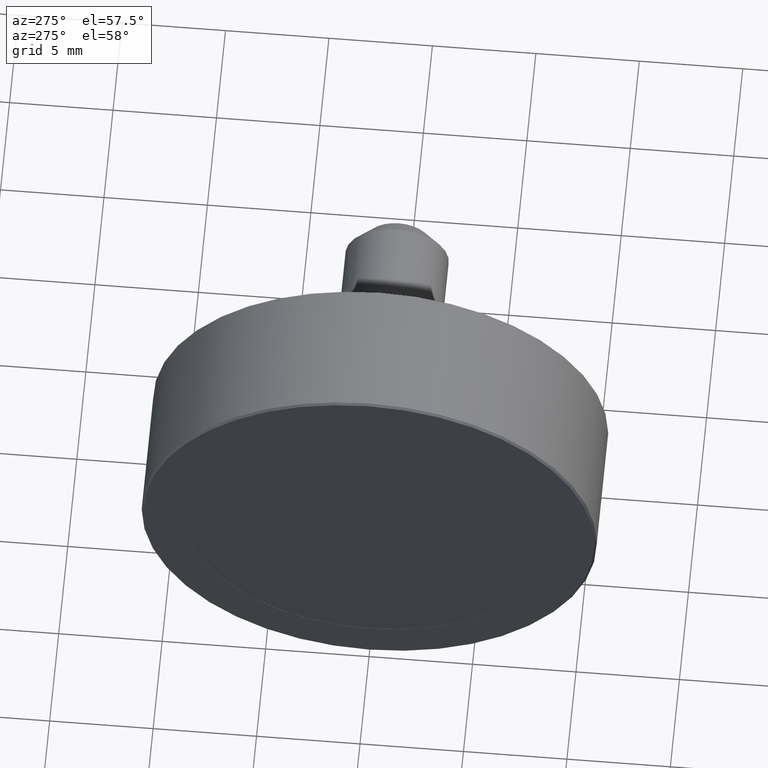
[diagram: clean part render]
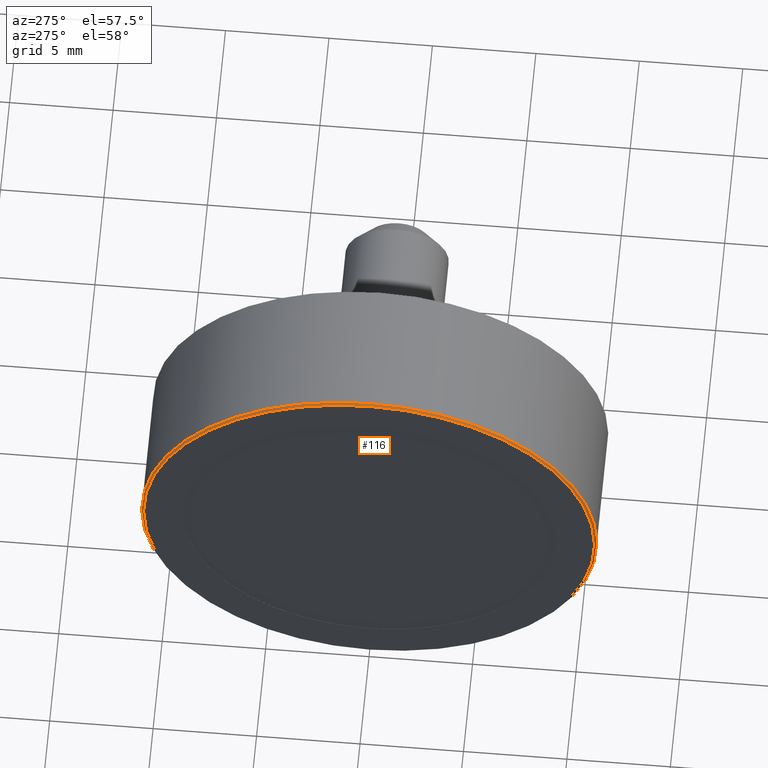
[diagram: same view with one face highlighted and labeled with its STEP entity id]
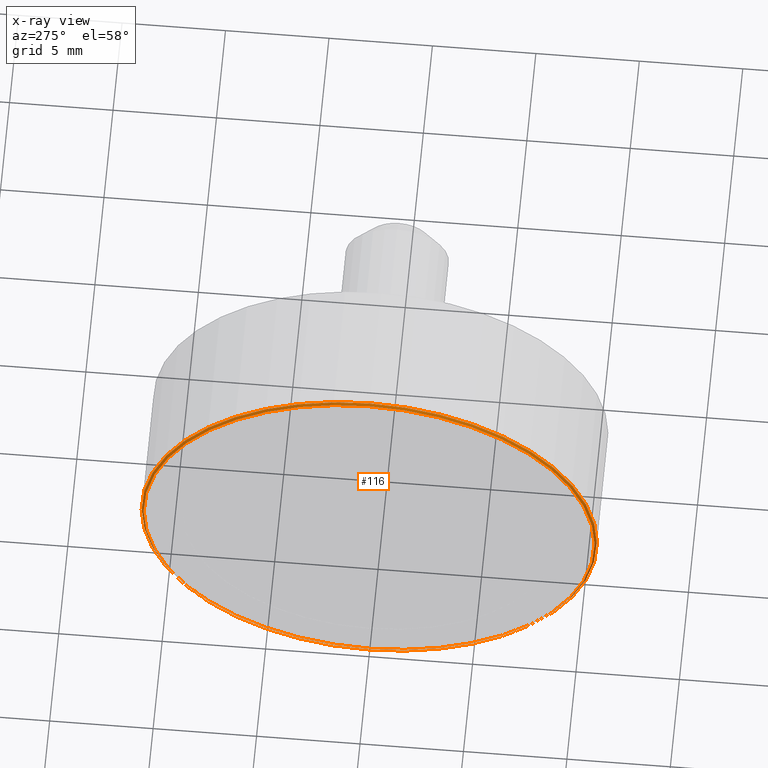
[diagram: x-ray of the same camera — body ghosted, the highlighted face saturated]
A machine part, auxiliary view. The second image highlights one B-rep face of the part: STEP entity #116.
The next image is the same camera in x-ray: the body ghosted, the highlighted face saturated — about 0% of this face is hidden behind the body in this view.
In plain terms, the highlighted conical surface has half-angle 45 deg.
Its self-contained STEP definition (entity closure, byte-faithful):
#22=FACE_BOUND('',#43,.T.);
#31=FACE_OUTER_BOUND('',#42,.T.);
#42=EDGE_LOOP('',(#92));
#43=EDGE_LOOP('',(#93));
#62=CIRCLE('',#130,11.);
#63=CIRCLE('',#131,10.9);
#72=VERTEX_POINT('',#196);
#73=VERTEX_POINT('',#198);
#82=EDGE_CURVE('',#72,#72,#62,.T.);
#83=EDGE_CURVE('',#73,#73,#63,.T.);
#92=ORIENTED_EDGE('',*,*,#82,.T.);
#93=ORIENTED_EDGE('',*,*,#83,.T.);
#112=CONICAL_SURFACE('',#129,10.95,45.);
#116=ADVANCED_FACE('',(#31,#22),#112,.T.);
#129=AXIS2_PLACEMENT_3D('',#195,#152,#153);
#130=AXIS2_PLACEMENT_3D('',#197,#154,#155);
#131=AXIS2_PLACEMENT_3D('',#199,#156,#157);
#152=DIRECTION('center_axis',(1.,0.,0.));
#153=DIRECTION('ref_axis',(0.,-1.,0.));
#154=DIRECTION('center_axis',(-1.,0.,0.));
#155=DIRECTION('ref_axis',(0.,-1.,0.));
#156=DIRECTION('center_axis',(1.,0.,0.));
#157=DIRECTION('ref_axis',(0.,-1.,0.));
#195=CARTESIAN_POINT('Origin',(0.05,0.,0.));
#196=CARTESIAN_POINT('',(0.1,11.,-1.34711147906209E-15));
#197=CARTESIAN_POINT('Origin',(0.1,0.,0.));
#198=CARTESIAN_POINT('',(0.,10.9,1.33486501107062E-15));
#199=CARTESIAN_POINT('Origin',(0.,0.,0.));